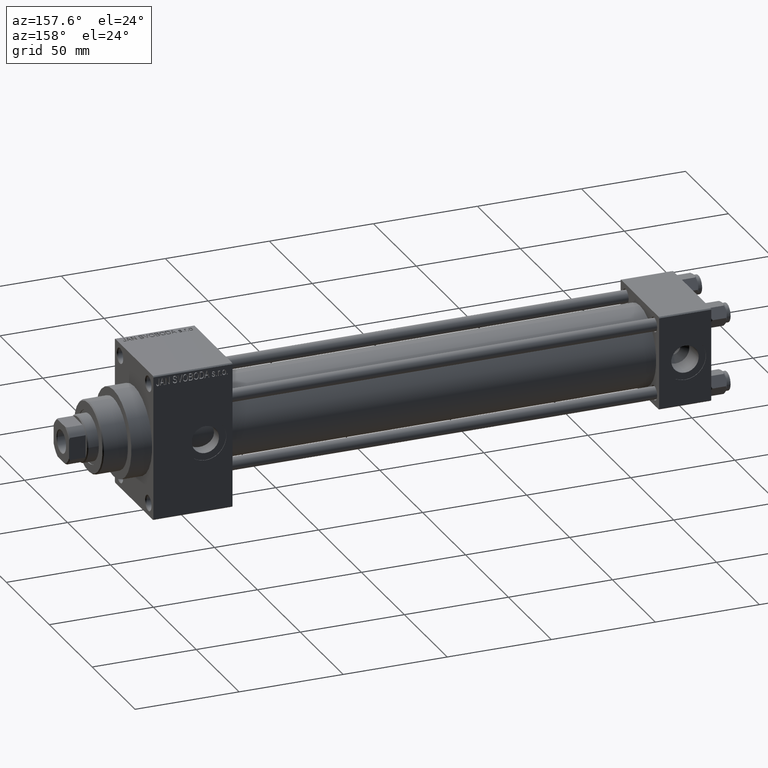
[diagram: clean part render]
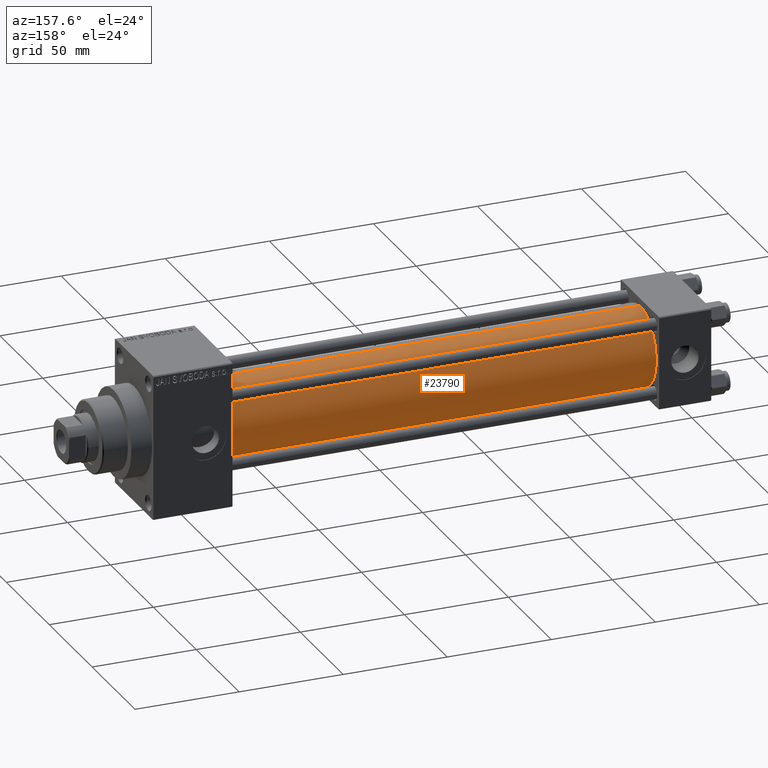
[diagram: same view with one face highlighted and labeled with its STEP entity id]
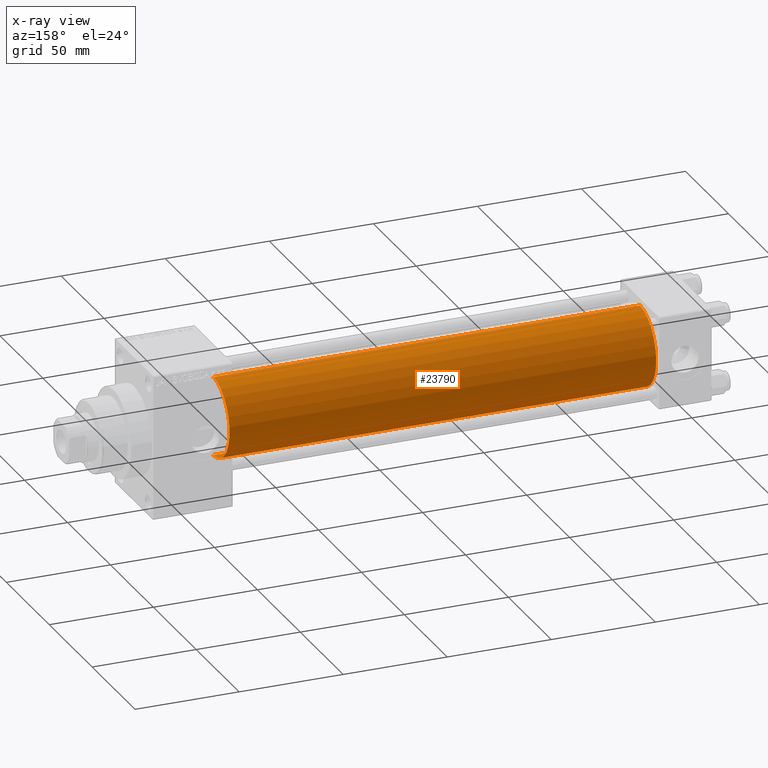
[diagram: x-ray of the same camera — body ghosted, the highlighted face saturated]
A machine part, auxiliary view. The second image highlights one B-rep face of the part: STEP entity #23790.
The next image is the same camera in x-ray: the body ghosted, the highlighted face saturated — about 0% of this face is hidden behind the body in this view.
In plain terms, the highlighted cylindrical surface (partial cylindrical patch) has radius 19 mm, axis along (-1, -0, -0).
Its self-contained STEP definition (entity closure, byte-faithful):
#199 = DIRECTION ( 'NONE',  ( -1.000000000000000000, -0.000000000000000000, -0.000000000000000000 ) ) ;
#815 = EDGE_LOOP ( 'NONE', ( #19294, #32962, #32554, #22286 ) ) ;
#2696 = VERTEX_POINT ( 'NONE', #25780 ) ;
#3118 = CARTESIAN_POINT ( 'NONE',  ( 229.9999999999999716, -2.602085213965210642E-15, 0.000000000000000000 ) ) ;
#3615 = DIRECTION ( 'NONE',  ( 1.000000000000000000, 0.000000000000000000, 0.000000000000000000 ) ) ;
#4857 = EDGE_CURVE ( 'NONE', #35294, #16583, #39491, .T. ) ;
#8621 = DIRECTION ( 'NONE',  ( 0.000000000000000000, 0.000000000000000000, 1.000000000000000000 ) ) ;
#11560 = CARTESIAN_POINT ( 'NONE',  ( 24.99999999999999289, -2.602085213965210642E-15, 0.000000000000000000 ) ) ;
#12996 = CARTESIAN_POINT ( 'NONE',  ( 229.9999999999999716, -2.752562955852400657E-16, -19.00000000000000000 ) ) ;
#13097 = AXIS2_PLACEMENT_3D ( 'NONE', #3118, #3615, #18737 ) ;
#14650 = LINE ( 'NONE', #38224, #48660 ) ;
#15044 = DIRECTION ( 'NONE',  ( 0.000000000000000000, 0.000000000000000000, 1.000000000000000000 ) ) ;
#16583 = VERTEX_POINT ( 'NONE', #43330 ) ;
#17584 = AXIS2_PLACEMENT_3D ( 'NONE', #30680, #199, #8621 ) ;
#18737 = DIRECTION ( 'NONE',  ( 0.000000000000000000, 0.000000000000000000, -1.000000000000000000 ) ) ;
#18872 = DIRECTION ( 'NONE',  ( -1.000000000000000000, -0.000000000000000000, -0.000000000000000000 ) ) ;
#19294 = ORIENTED_EDGE ( 'NONE', *, *, #40525, .F. ) ;
#21004 = VECTOR ( 'NONE', #21339, 1000.000000000000000 ) ;
#21339 = DIRECTION ( 'NONE',  ( -1.000000000000000000, -0.000000000000000000, -0.000000000000000000 ) ) ;
#22286 = ORIENTED_EDGE ( 'NONE', *, *, #4857, .F. ) ;
#23010 = FACE_OUTER_BOUND ( 'NONE', #815, .T. ) ;
#23790 = ADVANCED_FACE ( 'NONE', ( #23010 ), #34669, .T. ) ;
#25780 = CARTESIAN_POINT ( 'NONE',  ( 24.99999999999999289, -2.752562955852400657E-16, -19.00000000000000000 ) ) ;
#28782 = CARTESIAN_POINT ( 'NONE',  ( 229.9999999999999716, -2.602085213965210642E-15, 19.00000000000000000 ) ) ;
#30400 = DIRECTION ( 'NONE',  ( 1.000000000000000000, -0.000000000000000000, 0.000000000000000000 ) ) ;
#30680 = CARTESIAN_POINT ( 'NONE',  ( 229.9999999999999716, -2.602085213965210642E-15, 0.000000000000000000 ) ) ;
#31774 = CARTESIAN_POINT ( 'NONE',  ( 229.9999999999999716, -2.602085213965210642E-15, 19.00000000000000000 ) ) ;
#32554 = ORIENTED_EDGE ( 'NONE', *, *, #41819, .T. ) ;
#32962 = ORIENTED_EDGE ( 'NONE', *, *, #34067, .T. ) ;
#34067 = EDGE_CURVE ( 'NONE', #44513, #2696, #14650, .T. ) ;
#34465 = CIRCLE ( 'NONE', #13097, 19.00000000000000000 ) ;
#34669 = CYLINDRICAL_SURFACE ( 'NONE', #17584, 19.00000000000000000 ) ;
#35294 = VERTEX_POINT ( 'NONE', #31774 ) ;
#38224 = CARTESIAN_POINT ( 'NONE',  ( 229.9999999999999716, -2.752562955852400657E-16, -19.00000000000000000 ) ) ;
#39491 = LINE ( 'NONE', #28782, #21004 ) ;
#40525 = EDGE_CURVE ( 'NONE', #44513, #35294, #34465, .T. ) ;
#41819 = EDGE_CURVE ( 'NONE', #2696, #16583, #48830, .T. ) ;
#43330 = CARTESIAN_POINT ( 'NONE',  ( 24.99999999999999289, -2.602085213965210642E-15, 19.00000000000000000 ) ) ;
#44513 = VERTEX_POINT ( 'NONE', #12996 ) ;
#46459 = AXIS2_PLACEMENT_3D ( 'NONE', #11560, #30400, #15044 ) ;
#48660 = VECTOR ( 'NONE', #18872, 1000.000000000000000 ) ;
#48830 = CIRCLE ( 'NONE', #46459, 19.00000000000000000 ) ;